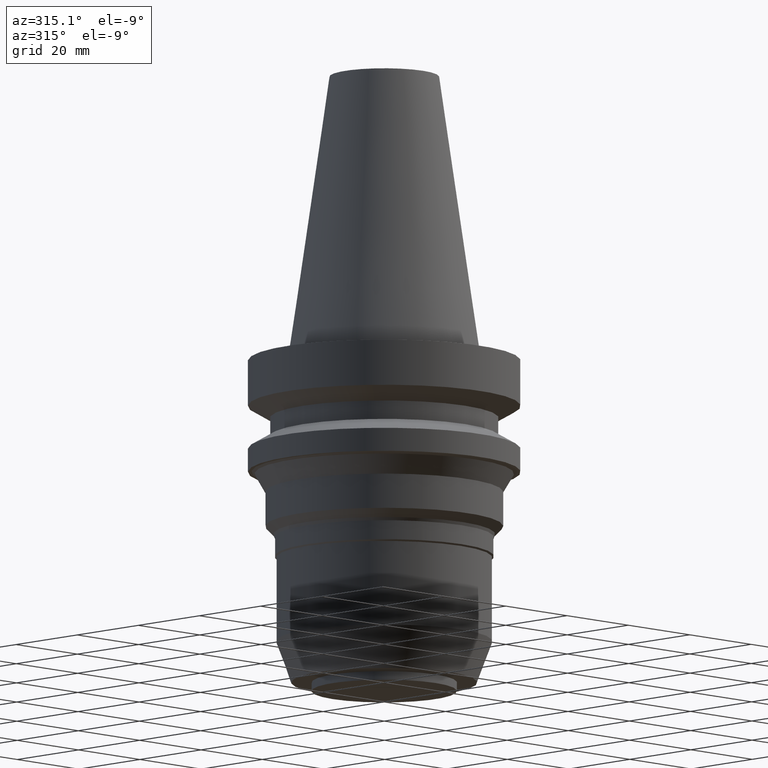
[diagram: clean part render]
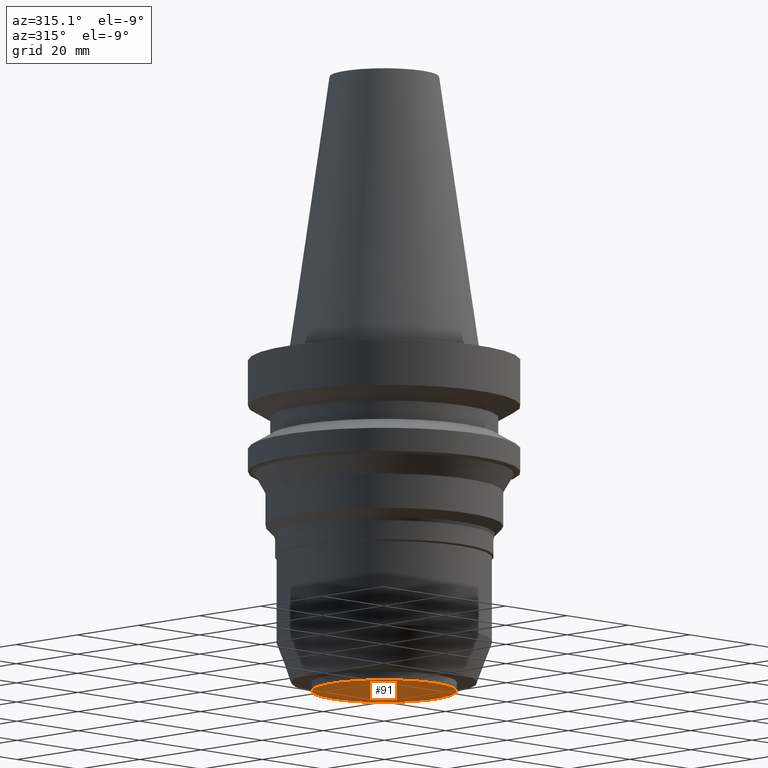
[diagram: same view with one face highlighted and labeled with its STEP entity id]
A machine part, auxiliary view. The second image highlights one B-rep face of the part: STEP entity #91.
In plain terms, the highlighted planar face has unit normal (0, 0, -1).
Its self-contained STEP definition (entity closure, byte-faithful):
#91=ADVANCED_FACE('Unnamed[1]',(#231),#232,.T.);
#129=EDGE_CURVE('Unnamed[1]',#290,#290,#291,.T.);
#231=FACE_OUTER_BOUND('',#421,.T.);
#232=PLANE('',#422);
#290=VERTEX_POINT('',#496);
#291=CIRCLE('',#497,16.7999999999864);
#421=EDGE_LOOP('',(#632));
#422=AXIS2_PLACEMENT_3D('',#633,#634,#635);
#496=CARTESIAN_POINT('',(4.78836898466613E-015,16.7999999999865,-78.1999999999997));
#497=AXIS2_PLACEMENT_3D('',#698,#699,#700);
#632=ORIENTED_EDGE('',*,*,#129,.T.);
#633=CARTESIAN_POINT('',(4.78836898466614E-015,8.39999999999323,-78.1999999999998));
#634=DIRECTION('',(6.12323399573677E-017,1.78860330739316E-014,-1.0));
#635=DIRECTION('',(-1.10003081040247E-030,1.0,1.78860330739316E-014));
#698=CARTESIAN_POINT('',(4.78836898466613E-015,1.05194955804532E-014,-78.1999999999997));
#699=DIRECTION('',(6.12323399573676E-017,-4.60918739095494E-016,-1.0));
#700=DIRECTION('',(2.33959801942475E-032,1.0,-4.60918739095494E-016));